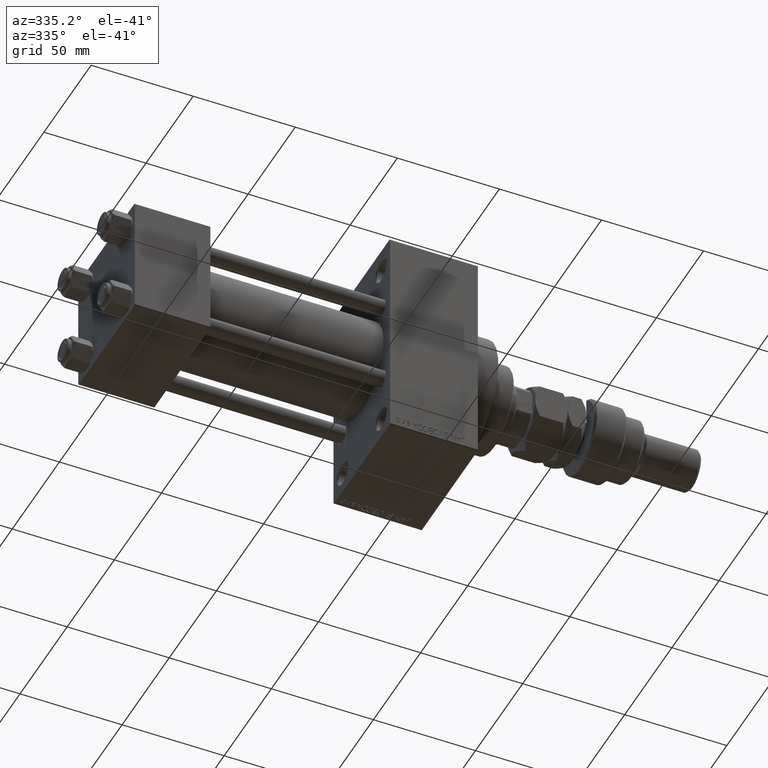
[diagram: clean part render]
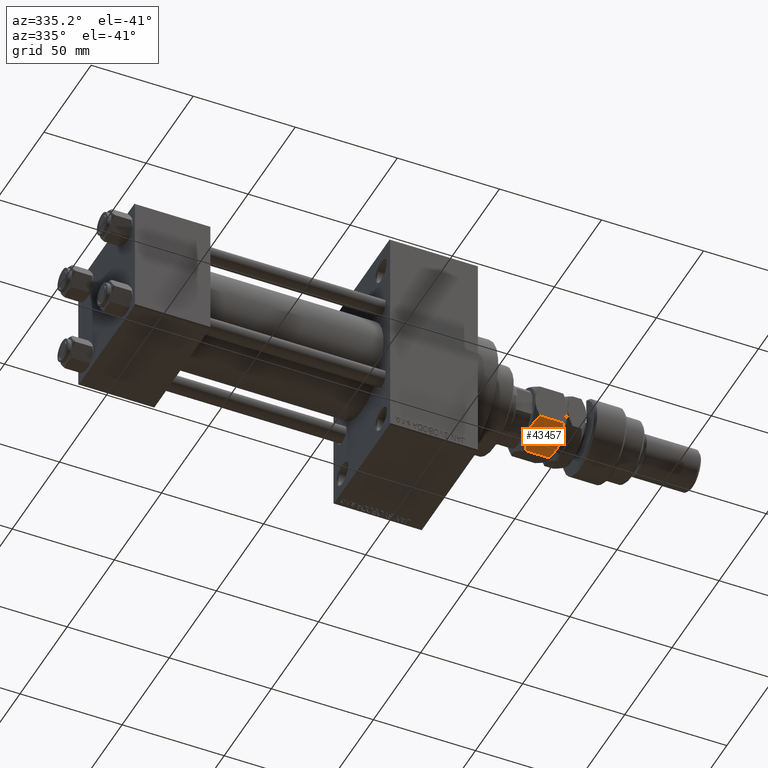
[diagram: same view with one face highlighted and labeled with its STEP entity id]
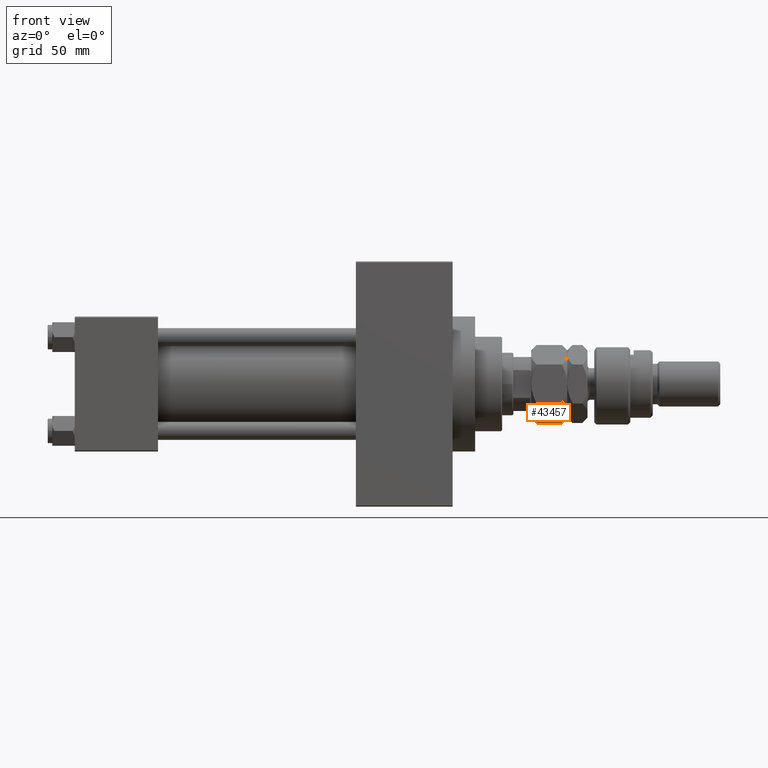
[diagram: same view with one face highlighted and labeled with its STEP entity id]
A machine part, auxiliary view. The second image highlights one B-rep face of the part: STEP entity #43457.
A second angle (front view) of the same face is appended — the face is thin or edge-on in the first view.
In plain terms, the highlighted planar face has unit normal (0, 0.5, 0.866).
Its self-contained STEP definition (entity closure, byte-faithful):
#39 = CARTESIAN_POINT ( 'NONE',  ( 15.00000000000000000, 0.000000000000000000, 0.000000000000000000 ) ) ;
#161 = CARTESIAN_POINT ( 'NONE',  ( 15.00000000000000178, -7.987879721624093321, 1.984320917578617616 ) ) ;
#1843 = CARTESIAN_POINT ( 'NONE',  ( 15.00000000000000000, -8.660254037844389075, 16.00000000000000000 ) ) ;
#2313 = CARTESIAN_POINT ( 'NONE',  ( 15.00000000000000178, -1.516896874073660584, 0.07181722323989220280 ) ) ;
#2705 = CARTESIAN_POINT ( 'NONE',  ( 15.00000000000000000, 5.176035048062463950, 0.8528038385778482500 ) ) ;
#2880 = VERTEX_POINT ( 'NONE', #24115 ) ;
#2938 = CARTESIAN_POINT ( 'NONE',  ( 15.00000000000000000, 8.660254037844389075, 16.00000000000000000 ) ) ;
#3307 = CARTESIAN_POINT ( 'NONE',  ( 15.00000000000000533, -1.527574731641585526, 16.00000000000001066 ) ) ;
#4056 = VERTEX_POINT ( 'NONE', #34410 ) ;
#6556 = EDGE_CURVE ( 'NONE', #18101, #4056, #34204, .T. ) ;
#6665 = CARTESIAN_POINT ( 'NONE',  ( 15.00000000000000178, 7.301344312447433538, 1.670136952686098741 ) ) ;
#7542 = CARTESIAN_POINT ( 'NONE',  ( 15.00000000000000533, -3.008020699068709725, 15.76423971609371222 ) ) ;
#8473 = CARTESIAN_POINT ( 'NONE',  ( 15.00000000000000000, 5.178726290334375371, 15.14627300035555990 ) ) ;
#8736 = CARTESIAN_POINT ( 'NONE',  ( 15.00000000000000000, 1.516896874073655477, 15.92818277676011007 ) ) ;
#8755 = ORIENTED_EDGE ( 'NONE', *, *, #34591, .F. ) ;
#9696 = CARTESIAN_POINT ( 'NONE',  ( 15.00000000000000178, -5.891877557735398341, 14.89726549906047737 ) ) ;
#9960 = CARTESIAN_POINT ( 'NONE',  ( 15.00000000000000355, -5.176035048062459509, 15.14719616142216196 ) ) ;
#10375 = ORIENTED_EDGE ( 'NONE', *, *, #6556, .F. ) ;
#11014 = CARTESIAN_POINT ( 'NONE',  ( 14.99999999999999645, 0.000000000000000000, 16.00000000000000000 ) ) ;
#12099 = VECTOR ( 'NONE', #35299, 1000.000000000000000 ) ;
#12357 = CARTESIAN_POINT ( 'NONE',  ( 15.00000000000000000, -5.890999289811427175, 1.102415080315421125 ) ) ;
#12503 = CARTESIAN_POINT ( 'NONE',  ( 15.00000000000000000, 3.008020699068711501, 0.2357602839062953870 ) ) ;
#12727 = CARTESIAN_POINT ( 'NONE',  ( 15.00000000000000355, 0.7629267201675408172, 15.98531533915807934 ) ) ;
#12896 = DIRECTION ( 'NONE',  ( -0.000000000000000000, -0.000000000000000000, -1.000000000000000000 ) ) ;
#13817 = CARTESIAN_POINT ( 'NONE',  ( 14.99999999999999645, 0.000000000000000000, 16.00000000000000000 ) ) ;
#14523 = CARTESIAN_POINT ( 'NONE',  ( 15.00000000000000178, -1.890862710942016411, 0.1142538058331598050 ) ) ;
#14930 = EDGE_CURVE ( 'NONE', #41010, #50491, #33198, .T. ) ;
#15376 = LINE ( 'NONE', #41250, #31369 ) ;
#17835 = ORIENTED_EDGE ( 'NONE', *, *, #14930, .F. ) ;
#18101 = VERTEX_POINT ( 'NONE', #13817 ) ;
#20212 = CARTESIAN_POINT ( 'NONE',  ( 15.00000000000000178, 1.527574731641579753, -2.310705880109730931E-15 ) ) ;
#22277 = DIRECTION ( 'NONE',  ( 0.000000000000000000, 0.000000000000000000, 1.000000000000000000 ) ) ;
#22481 = CARTESIAN_POINT ( 'NONE',  ( 15.00000000000000178, -0.3816858437404750393, -1.673737103774498062E-15 ) ) ;
#22534 = DIRECTION ( 'NONE',  ( -1.000000000000000000, 0.000000000000000000, 0.000000000000000000 ) ) ;
#22804 = FACE_OUTER_BOUND ( 'NONE', #42219, .T. ) ;
#22882 = CARTESIAN_POINT ( 'NONE',  ( 14.99999999999999822, 5.891877557735396564, 1.102734500939527296 ) ) ;
#22963 = VERTEX_POINT ( 'NONE', #47442 ) ;
#23125 = LINE ( 'NONE', #2938, #12099 ) ;
#23889 = CARTESIAN_POINT ( 'NONE',  ( 15.00000000000000000, 1.890862710942010638, 15.88574619416683831 ) ) ;
#24115 = CARTESIAN_POINT ( 'NONE',  ( 15.00000000000000000, -8.660254037844389075, 2.320508075688767047 ) ) ;
#24722 = EDGE_CURVE ( 'NONE', #22963, #18101, #43804, .T. ) ;
#24921 = CARTESIAN_POINT ( 'NONE',  ( 14.99999999999999645, 0.000000000000000000, 16.00000000000000000 ) ) ;
#26704 = CARTESIAN_POINT ( 'NONE',  ( 14.99999999999999822, -3.735400403320778384, 0.4426250994506710779 ) ) ;
#26761 = PLANE ( 'NONE',  #42172 ) ;
#26841 = CARTESIAN_POINT ( 'NONE',  ( 15.00000000000000000, 8.660254037844389075, 2.320508075688765715 ) ) ;
#28127 = CARTESIAN_POINT ( 'NONE',  ( 15.00000000000000178, 0.3816858437404682114, 16.00000000000001066 ) ) ;
#28548 = CARTESIAN_POINT ( 'NONE',  ( 15.00000000000000000, -8.660254037844389075, 2.320508075688767047 ) ) ;
#28886 = EDGE_CURVE ( 'NONE', #22963, #2880, #15376, .T. ) ;
#28982 = ORIENTED_EDGE ( 'NONE', *, *, #28886, .T. ) ;
#29111 = CARTESIAN_POINT ( 'NONE',  ( 15.00000000000000000, 8.660254037844389075, 2.320508075688765715 ) ) ;
#30507 = ORIENTED_EDGE ( 'NONE', *, *, #33153, .F. ) ;
#30670 = B_SPLINE_CURVE_WITH_KNOTS ( 'NONE', 3,
 ( #34401, #22481, #38633, #2313, #14523, #46840, #26704, #42857, #12357, #36234, #161, #28548 ),
 .UNSPECIFIED., .F., .F.,
 ( 4, 2, 2, 2, 2, 4 ),
 ( 0.03291042869972461704, 0.03403908204310902852, 0.03516773538649344694, 0.03742504207326226989, 0.03968234876003109979, 0.04193965544679992274 ),
 .UNSPECIFIED. ) ;
#31369 = VECTOR ( 'NONE', #12896, 1000.000000000000000 ) ;
#32106 = CARTESIAN_POINT ( 'NONE',  ( 15.00000000000000533, 7.987879721624093321, 14.01567908242138927 ) ) ;
#32359 = CARTESIAN_POINT ( 'NONE',  ( 15.00000000000000000, 8.660254037844389075, 13.67949192431123784 ) ) ;
#33153 = EDGE_CURVE ( 'NONE', #50491, #2880, #30670, .T. ) ;
#33198 = B_SPLINE_CURVE_WITH_KNOTS ( 'NONE', 3,
 ( #26841, #42991, #6665, #22882, #2705, #12503, #20212, #39 ),
 .UNSPECIFIED., .F., .F.,
 ( 4, 2, 2, 4 ),
 ( 0.02387628527307377596, 0.02613482112973648797, 0.02839335698639919650, 0.03291042869972461704 ),
 .UNSPECIFIED. ) ;
#34204 = B_SPLINE_CURVE_WITH_KNOTS ( 'NONE', 3,
 ( #24921, #28127, #12727, #8736, #23889, #36070, #36336, #8473, #48258, #52236, #32106, #32359 ),
 .UNSPECIFIED., .F., .F.,
 ( 4, 2, 2, 2, 2, 4 ),
 ( 0.03291042869972460316, 0.03403908204310901464, 0.03516773538649342612, 0.03742504207326225601, 0.03968234876003107897, 0.04193965544679990887 ),
 .UNSPECIFIED. ) ;
#34401 = CARTESIAN_POINT ( 'NONE',  ( 15.00000000000000000, 0.000000000000000000, 0.000000000000000000 ) ) ;
#34410 = CARTESIAN_POINT ( 'NONE',  ( 15.00000000000000000, 8.660254037844389075, 13.67949192431123784 ) ) ;
#34591 = EDGE_CURVE ( 'NONE', #4056, #41010, #23125, .T. ) ;
#35299 = DIRECTION ( 'NONE',  ( -0.000000000000000000, -0.000000000000000000, -1.000000000000000000 ) ) ;
#35707 = CARTESIAN_POINT ( 'NONE',  ( 15.00000000000000000, 0.000000000000000000, 0.000000000000000000 ) ) ;
#36070 = CARTESIAN_POINT ( 'NONE',  ( 15.00000000000000000, 3.004330627448758673, 15.71971113554880972 ) ) ;
#36234 = CARTESIAN_POINT ( 'NONE',  ( 15.00000000000000533, -7.300329060372333423, 1.669694153640836065 ) ) ;
#36336 = CARTESIAN_POINT ( 'NONE',  ( 15.00000000000000000, 3.735400403320773055, 15.55737490054933403 ) ) ;
#38633 = CARTESIAN_POINT ( 'NONE',  ( 15.00000000000000000, -0.7629267201675461463, 0.01468466084192619932 ) ) ;
#41010 = VERTEX_POINT ( 'NONE', #29111 ) ;
#41250 = CARTESIAN_POINT ( 'NONE',  ( 15.00000000000000000, -8.660254037844389075, 16.00000000000000000 ) ) ;
#41780 = CARTESIAN_POINT ( 'NONE',  ( 15.00000000000000000, -8.660254037844389075, 13.67949192431123961 ) ) ;
#42172 = AXIS2_PLACEMENT_3D ( 'NONE', #1843, #22534, #22277 ) ;
#42219 = EDGE_LOOP ( 'NONE', ( #17835, #8755, #10375, #45894, #28982, #30507 ) ) ;
#42857 = CARTESIAN_POINT ( 'NONE',  ( 14.99999999999999822, -5.178726290334377147, 0.8537269996444445397 ) ) ;
#42991 = CARTESIAN_POINT ( 'NONE',  ( 15.00000000000000000, 7.987590979791842294, 1.984176546662486773 ) ) ;
#43457 = ADVANCED_FACE ( 'NONE', ( #22804 ), #26761, .F. ) ;
#43804 = B_SPLINE_CURVE_WITH_KNOTS ( 'NONE', 3,
 ( #41780, #46275, #46020, #9696, #9960, #7542, #3307, #11014 ),
 .UNSPECIFIED., .F., .F.,
 ( 4, 2, 2, 4 ),
 ( 0.02387628527307377943, 0.02613482112973648450, 0.02839335698639919303, 0.03291042869972460316 ),
 .UNSPECIFIED. ) ;
#45894 = ORIENTED_EDGE ( 'NONE', *, *, #24722, .F. ) ;
#46020 = CARTESIAN_POINT ( 'NONE',  ( 15.00000000000000000, -7.301344312447432650, 14.32986304731390881 ) ) ;
#46275 = CARTESIAN_POINT ( 'NONE',  ( 15.00000000000000178, -7.987590979791838741, 14.01582345333751967 ) ) ;
#46840 = CARTESIAN_POINT ( 'NONE',  ( 15.00000000000000178, -3.004330627448764002, 0.2802888644511988825 ) ) ;
#47442 = CARTESIAN_POINT ( 'NONE',  ( 15.00000000000000000, -8.660254037844389075, 13.67949192431123961 ) ) ;
#48258 = CARTESIAN_POINT ( 'NONE',  ( 15.00000000000000178, 5.890999289811421846, 14.89758491968458465 ) ) ;
#50491 = VERTEX_POINT ( 'NONE', #35707 ) ;
#52236 = CARTESIAN_POINT ( 'NONE',  ( 14.99999999999999645, 7.300329060372325429, 14.33030584635916860 ) ) ;